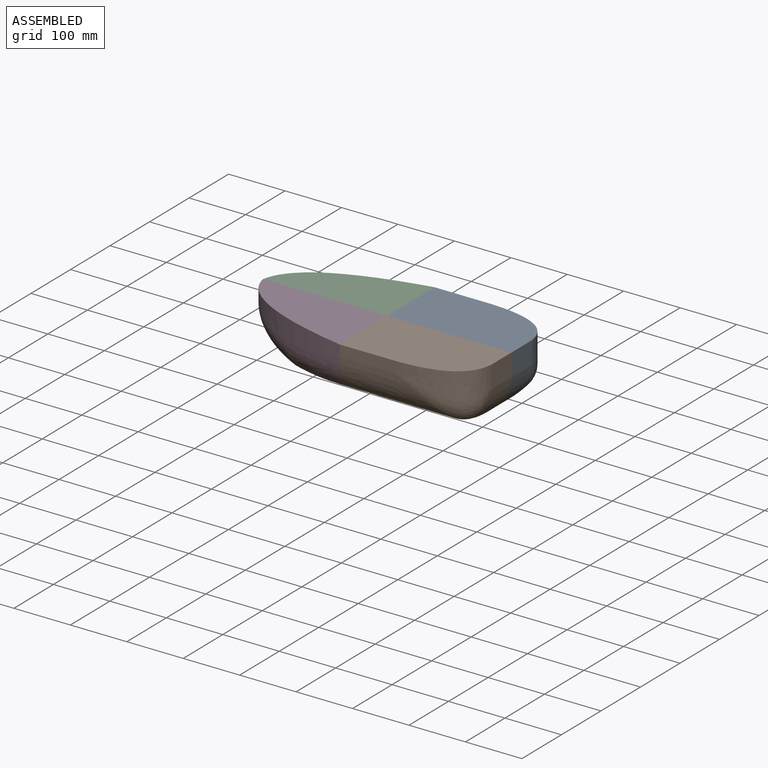
[diagram: assembled view]
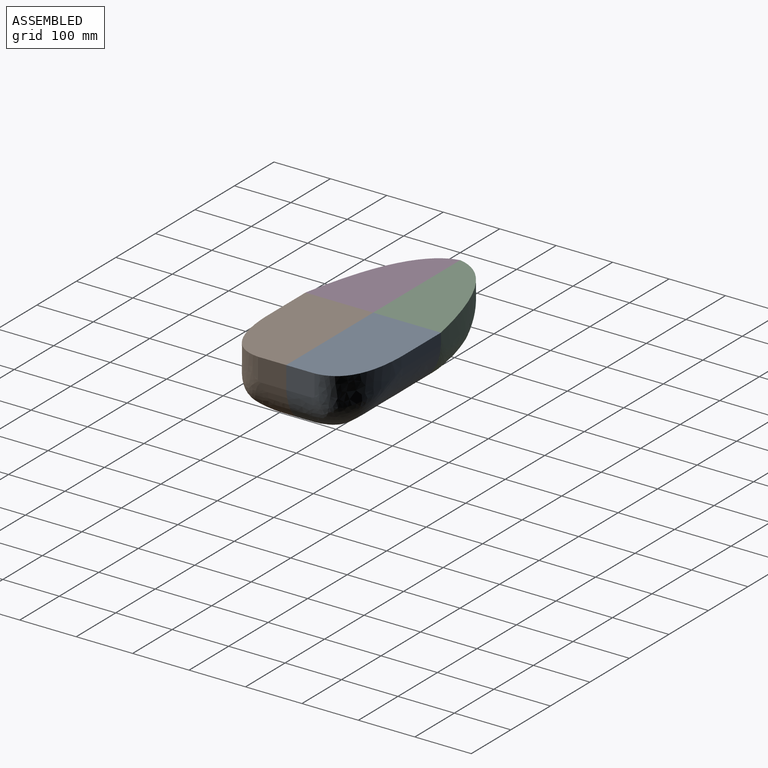
[diagram: assembled view, second angle]
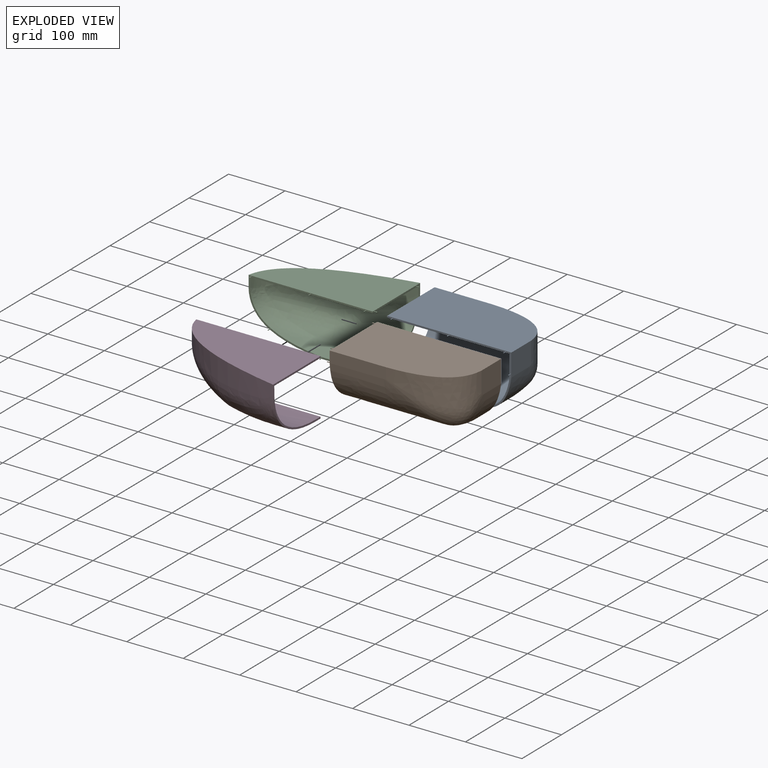
[diagram: exploded view]
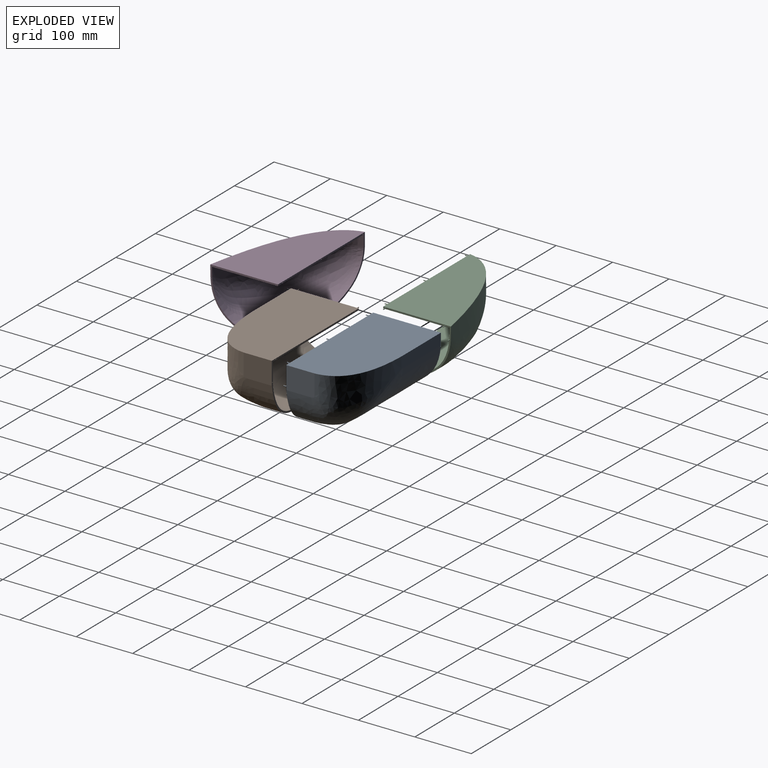
[diagram: exploded view, second angle]
ASSEMBLY  parts=4 mates=3
PART A: 48 faces, bbox 223.2x161.3x102.9 mm
  f0: plane 220x100mm, normal (0,-1,0), area 1521.5mm2, adj f1,f2,f3,f6,f7,f13,f14,f15
  f1: plane 120x100mm, normal (-1,0,0), area 886.4mm2, adj f0,f4,f5,f6,f7,f16,f17,f18
  f2: plane 52.85x42.85mm, normal (1,0,0), area 1995.8mm2, adj f0,f3,f7,f8,f9
  f3: extruded ~59.86x58.97mm, area 3254.7mm2, adj f0,f2,f9,f12,f13
  f4: extruded ~176.23x110mm, area 24032mm2, adj f1,f5,f6,f10,f12
  f5: plane 101.18x21.18mm, normal (0,1,0), area 1999mm2, adj f1,f4,f7,f8,f10
  f6: plane 168.8x10mm, normal (0,0,-1), area 1688mm2, adj f0,f1,f4,f13
  f7: plane 220x120mm, normal (0,0,1), area 24763.3mm2, adj f0,f1,f2,f5,f8
  f8: extruded ~120x70mm, area 6063.8mm2, adj f2,f5,f7,f9,f10
  f9: bspline ~40.98x34.06mm, area 536.6mm2, adj f2,f3,f8,f11
  f10: bspline ~113.68x71.42mm, area 2961mm2, adj f4,f5,f8,f11
  f11: sphere r=40mm, area 847.7mm2, adj f9,f10,f12
  f12: bspline ~118.12x45.51mm, area 1949.2mm2, adj f3,f4,f11,f13
  f13: cylinder r=40mm len=10mm, axis (0,1,0), area 33.2mm2, adj f0,f3,f6,f12
  f14: plane 52.64x39.55mm, normal (-1,0,0), area 1831.8mm2, adj f0,f15,f19,f20,f21
  f15: extruded ~58.97x57.08mm, area 3106.7mm2, adj f0,f14,f21,f24,f25
  f16: extruded ~176.23x107mm, area 23325.2mm2, adj f1,f17,f18,f22,f24
  f17: plane 101.08x18.03mm, normal (0,-1,0), area 1689mm2, adj f1,f16,f19,f20,f22
  f18: plane 168.8x10mm, normal (0,0,1), area 1688mm2, adj f0,f1,f16,f25
  f19: plane 217x117mm, normal (0,0,-1), area 23860mm2, adj f0,f1,f14,f17,f20
  f20: extruded ~117.04x67.11mm, area 5418.1mm2, adj f14,f17,f19,f21,f22
  f21: bspline ~38.89x32.77mm, area 482.5mm2, adj f14,f15,f20,f23
  f22: bspline ~111.12x68.65mm, area 2668.9mm2, adj f16,f17,f20,f23
  f23: sphere r=37mm, area 725.3mm2, adj f21,f22,f24
  f24: bspline ~116.73x42.69mm, area 1770.2mm2, adj f15,f16,f23,f25
  f25: cylinder r=37mm len=10mm, axis (0,1,0), area 30.7mm2, adj f0,f15,f18,f24
  f26: cylinder r=0.75mm len=6mm, axis (-1,0,0), area 28.3mm2, adj f1,f27
  f27: plane 1.5x1.5mm, normal (-1,0,0), area 1.8mm2, adj f26
  f28: cylinder r=0.75mm len=6mm, axis (-1,0,0), area 28.3mm2, adj f1,f29
  f29: plane 1.5x1.5mm, normal (-1,0,0), area 1.8mm2, adj f28
  f30: cylinder r=0.75mm len=6mm, axis (-1,0,0), area 28.3mm2, adj f1,f31
  f31: plane 1.5x1.5mm, normal (-1,0,0), area 1.8mm2, adj f30
  f32: cylinder r=0.75mm len=6mm, axis (-1,0,0), area 28.3mm2, adj f1,f33
  f33: plane 1.5x1.5mm, normal (-1,0,0), area 1.8mm2, adj f32
  f34: cylinder r=0.68mm len=5.5mm, axis (0,1,0), area 23.3mm2, adj f0,f35
  f35: plane 1.35x1.35mm, normal (0,-1,0), area 1.4mm2, adj f34
  f36: cylinder r=0.68mm len=5.5mm, axis (0,1,0), area 23.3mm2, adj f0,f37
  f37: plane 1.35x1.35mm, normal (0,-1,0), area 1.4mm2, adj f36
  f38: cylinder r=0.68mm len=5.5mm, axis (0,1,0), area 23.3mm2, adj f0,f39
  f39: plane 1.35x1.35mm, normal (0,-1,0), area 1.4mm2, adj f38
  f40: cylinder r=0.68mm len=5.5mm, axis (0,1,0), area 23.3mm2, adj f0,f41
  f41: plane 1.35x1.35mm, normal (0,-1,0), area 1.4mm2, adj f40
  f42: cylinder r=0.68mm len=5.5mm, axis (0,1,0), area 23.3mm2, adj f0,f43
  f43: plane 1.35x1.35mm, normal (0,-1,0), area 1.4mm2, adj f42
  f44: cylinder r=0.68mm len=5.5mm, axis (0,1,0), area 23.3mm2, adj f0,f45
  f45: plane 1.35x1.35mm, normal (0,-1,0), area 1.4mm2, adj f44
  f46: cylinder r=0.68mm len=5.5mm, axis (0,1,0), area 23.3mm2, adj f0,f47
  f47: plane 1.35x1.35mm, normal (0,-1,0), area 1.4mm2, adj f46
PART B: 48 faces, bbox 161.3x228.7x102.9 mm
  f0: plane 220x100mm, normal (1,0,0), area 1519.2mm2, adj f1,f2,f5,f6,f7,f13,f14,f15
  f1: extruded ~59.86x58.97mm, area 3254.7mm2, adj f0,f2,f10,f12,f13
  f2: plane 52.85x42.85mm, normal (0,-1,0), area 1995.8mm2, adj f0,f1,f6,f8,f10
  f3: extruded ~176.23x110mm, area 23995.4mm2, adj f4,f5,f7,f9,f12
  f4: plane 101.18x21.18mm, normal (-1,0,0), area 1999mm2, adj f3,f5,f6,f8,f9
  f5: plane 120x100mm, normal (0,1,0), area 888mm2, adj f0,f3,f4,f6,f7,f16,f17,f18
  f6: plane 220x120mm, normal (0,0,1), area 24763.3mm2, adj f0,f2,f4,f5,f8
  f7: plane 168.8x10mm, normal (0,0,-1), area 1688mm2, adj f0,f3,f5,f13
  f8: extruded ~120x70mm, area 6063.8mm2, adj f2,f4,f6,f9,f10
  f9: bspline ~113.68x71.42mm, area 2961.2mm2, adj f3,f4,f8,f11
  f10: bspline ~41x34.07mm, area 536.6mm2, adj f1,f2,f8,f11
  f11: sphere r=40mm, area 1086.8mm2, adj f9,f10,f12
  f12: bspline ~118.12x45.51mm, area 1949.2mm2, adj f1,f3,f11,f13
  f13: cylinder r=40mm len=10mm, axis (-1,0,0), area 33.2mm2, adj f0,f1,f7,f12
  f14: extruded ~58.97x57.08mm, area 3106.7mm2, adj f0,f15,f22,f24,f25
  f15: plane 52.64x39.55mm, normal (0,1,0), area 1831.8mm2, adj f0,f14,f18,f20,f22
  f16: extruded ~176.23x107mm, area 23289.3mm2, adj f5,f17,f19,f21,f24
  f17: plane 101.08x18.03mm, normal (1,0,0), area 1689mm2, adj f5,f16,f18,f20,f21
  f18: plane 217x117mm, normal (0,0,-1), area 23859.6mm2, adj f0,f5,f15,f17,f20
  f19: plane 168.8x10mm, normal (0,0,1), area 1688mm2, adj f0,f5,f16,f25
  f20: extruded ~117.04x67.11mm, area 5418.1mm2, adj f15,f17,f18,f21,f22
  f21: bspline ~111.12x68.65mm, area 2669mm2, adj f16,f17,f20,f23
  f22: bspline ~38.89x32.77mm, area 482.5mm2, adj f14,f15,f20,f23
  f23: sphere r=37mm, area 929.9mm2, adj f21,f22,f24
  f24: bspline ~116.73x42.69mm, area 1770.2mm2, adj f14,f16,f23,f25
  f25: cylinder r=37mm len=10mm, axis (-1,0,0), area 30.7mm2, adj f0,f14,f19,f24
  f26: cylinder r=0.68mm len=5.5mm, axis (0,-1,0), area 23.3mm2, adj f5,f27
  f27: plane 1.35x1.35mm, normal (0,1,0), area 1.4mm2, adj f26
  f28: cylinder r=0.68mm len=5.5mm, axis (0,-1,0), area 23.3mm2, adj f5,f29
  f29: plane 1.35x1.35mm, normal (0,1,0), area 1.4mm2, adj f28
  f30: cylinder r=0.68mm len=5.5mm, axis (0,-1,0), area 23.3mm2, adj f5,f31
  f31: plane 1.35x1.35mm, normal (0,1,0), area 1.4mm2, adj f30
  f32: cylinder r=0.68mm len=5.5mm, axis (0,-1,0), area 23.3mm2, adj f5,f33
  f33: plane 1.35x1.35mm, normal (0,1,0), area 1.4mm2, adj f32
  f34: cylinder r=0.75mm len=6mm, axis (1,0,0), area 28.3mm2, adj f0,f35
  f35: plane 1.5x1.5mm, normal (1,0,0), area 1.8mm2, adj f34
  f36: cylinder r=0.75mm len=6mm, axis (1,0,0), area 28.3mm2, adj f0,f37
  f37: plane 1.5x1.5mm, normal (1,0,0), area 1.8mm2, adj f36
  f38: cylinder r=0.75mm len=6mm, axis (1,0,0), area 28.3mm2, adj f0,f39
  f39: plane 1.5x1.5mm, normal (1,0,0), area 1.8mm2, adj f38
  f40: cylinder r=0.75mm len=6mm, axis (1,0,0), area 28.3mm2, adj f0,f41
  f41: plane 1.5x1.5mm, normal (1,0,0), area 1.8mm2, adj f40
  f42: cylinder r=0.75mm len=6mm, axis (1,0,0), area 28.3mm2, adj f0,f43
  f43: plane 1.5x1.5mm, normal (1,0,0), area 1.8mm2, adj f42
  f44: cylinder r=0.75mm len=6mm, axis (1,0,0), area 28.3mm2, adj f0,f45
  f45: plane 1.5x1.5mm, normal (1,0,0), area 1.8mm2, adj f44
  f46: cylinder r=0.75mm len=6mm, axis (1,0,0), area 28.3mm2, adj f0,f47
  f47: plane 1.5x1.5mm, normal (1,0,0), area 1.8mm2, adj f46
PART C: 44 faces, bbox 160.7x245.3x113.1 mm
  f0: plane 220x100mm, normal (-1,0,0), area 1472.3mm2, adj f2,f4,f5,f6,f7,f8,f9,f14
  f1: bspline ~62.52x14.58mm, area 60.8mm2, adj f2,f3,f7,f10
  f2: extruded ~90.59x32.43mm, area 1652.4mm2, adj f0,f1,f7,f9
  f3: extruded ~106.67x101.79mm, area 6134.4mm2, adj f1,f4,f6,f10,f12
  f4: plane 132.93x112.93mm, normal (0,-1,0), area 888.4mm2, adj f0,f3,f5,f6,f8,f12,f15,f16
  f5: plane 220x120mm, normal (0,0,1), area 18506.7mm2, adj f0,f4,f8
  f6: plane 89.12x10mm, normal (0,0,-1), area 891.2mm2, adj f0,f3,f4,f7
  f7: cylinder r=20mm len=10mm, axis (1,0,0), area 17.7mm2, adj f0,f1,f2,f6
  f8: extruded ~220x120mm, area 8038.4mm2, adj f0,f4,f5,f9,f12
  f9: bspline ~121.73x100.24mm, area 9956mm2, adj f0,f2,f8,f10,f11
  f10: bspline ~7.78x5.93mm, area 11.6mm2, adj f1,f3,f9,f11
  f11: bspline ~60.18x57.11mm, area 100.5mm2, adj f9,f10,f12
  f12: bspline ~146.57x99.21mm, area 8668.7mm2, adj f3,f4,f8,f11
  f13: bspline ~62.18x14.23mm, area 51.4mm2, adj f14,f15,f18,f21
  f14: extruded ~89.48x32.43mm, area 1635.9mm2, adj f0,f13,f18,f20
  f15: extruded ~103.78x101.79mm, area 6006.9mm2, adj f4,f13,f17,f21,f23
  f16: plane 216.95x116.94mm, normal (0,0,-1), area 17724.7mm2, adj f0,f4,f19,f23
  f17: plane 89.12x10mm, normal (0,0,1), area 891.2mm2, adj f0,f4,f15,f18
  f18: cylinder r=17mm len=10mm, axis (1,0,0), area 15.1mm2, adj f0,f13,f14,f17
  f19: extruded ~216.69x116.89mm, area 7155.9mm2, adj f0,f16,f20,f23
  f20: bspline ~119.04x97.37mm, area 9268.5mm2, adj f0,f14,f19,f21,f22
  f21: bspline ~7.31x5.48mm, area 9.5mm2, adj f13,f15,f20,f22
  f22: bspline ~56.73x48.23mm, area 81.1mm2, adj f20,f21,f23
  f23: bspline ~144.67x94.04mm, area 8154.3mm2, adj f4,f15,f16,f19,f22
  f24: cylinder r=0.68mm len=5.5mm, axis (1,0,0), area 23.3mm2, adj f0,f25
  f25: plane 1.35x1.35mm, normal (-1,0,0), area 1.4mm2, adj f24
  f26: cylinder r=0.68mm len=5.5mm, axis (1,0,0), area 23.3mm2, adj f0,f27
  f27: plane 1.35x1.35mm, normal (-1,0,0), area 1.4mm2, adj f26
  f28: cylinder r=0.68mm len=5.5mm, axis (1,0,0), area 23.3mm2, adj f0,f29
  f29: plane 1.35x1.35mm, normal (-1,0,0), area 1.4mm2, adj f28
  f30: cylinder r=0.68mm len=5.5mm, axis (1,0,0), area 23.3mm2, adj f0,f31
  f31: plane 1.35x1.35mm, normal (-1,0,0), area 1.4mm2, adj f30
  f32: cylinder r=0.68mm len=5.5mm, axis (1,0,0), area 23.3mm2, adj f0,f33
  f33: plane 1.35x1.35mm, normal (-1,0,0), area 1.4mm2, adj f32
  f34: cylinder r=0.68mm len=5.5mm, axis (1,0,0), area 23.3mm2, adj f0,f35
  f35: plane 1.35x1.35mm, normal (-1,0,0), area 1.4mm2, adj f34
  f36: cylinder r=0.68mm len=5.5mm, axis (0,1,0), area 23.3mm2, adj f4,f37
  f37: plane 1.35x1.35mm, normal (0,-1,0), area 1.4mm2, adj f36
  f38: cylinder r=0.68mm len=5.5mm, axis (0,1,0), area 23.3mm2, adj f4,f39
  f39: plane 1.35x1.35mm, normal (0,-1,0), area 1.4mm2, adj f38
  f40: cylinder r=0.68mm len=5.5mm, axis (0,1,0), area 23.3mm2, adj f4,f41
  f41: plane 1.35x1.35mm, normal (0,-1,0), area 1.4mm2, adj f40
  f42: cylinder r=0.68mm len=5.5mm, axis (0,1,0), area 23.3mm2, adj f4,f43
  f43: plane 1.35x1.35mm, normal (0,-1,0), area 1.4mm2, adj f42
PART D: 44 faces, bbox 232.2x147.7x100 mm
  f0: bspline ~62.52x14.58mm, area 60.8mm2, adj f1,f2,f7,f9
  f1: extruded ~90.59x32.43mm, area 1652.4mm2, adj f0,f4,f7,f10
  f2: extruded ~106.67x101.79mm, area 6134.5mm2, adj f0,f3,f5,f9,f12
  f3: plane 89.12x10mm, normal (0,0,-1), area 891.2mm2, adj f2,f4,f5,f7
  f4: plane 220x100mm, normal (0,1,0), area 1470.3mm2, adj f1,f3,f5,f6,f7,f8,f10,f14
  f5: plane 120x100mm, normal (1,0,0), area 887.2mm2, adj f2,f3,f4,f6,f8,f12,f15,f16
  f6: plane 220x120mm, normal (0,0,1), area 18506.7mm2, adj f4,f5,f8
  f7: cylinder r=20mm len=10mm, axis (0,-1,0), area 17.7mm2, adj f0,f1,f3,f4
  f8: extruded ~220x120mm, area 8038.5mm2, adj f4,f5,f6,f10,f12
  f9: bspline ~7.78x5.93mm, area 11.6mm2, adj f0,f2,f10,f11
  f10: bspline ~121.73x100.24mm, area 9956.4mm2, adj f1,f4,f8,f9,f11
  f11: bspline ~59.71x50.82mm, area 100.5mm2, adj f9,f10,f12
  f12: bspline ~142.89x98.55mm, area 8667mm2, adj f2,f5,f8,f11,f36,f37
  f13: bspline ~62.18x14.23mm, area 51.4mm2, adj f14,f15,f18,f20
  f14: extruded ~89.48x32.43mm, area 1635.9mm2, adj f4,f13,f18,f21
  f15: extruded ~103.78x101.79mm, area 6007mm2, adj f5,f13,f16,f20,f23
  f16: plane 89.12x10mm, normal (0,0,1), area 891.2mm2, adj f4,f5,f15,f18
  f17: plane 216.95x116.94mm, normal (0,0,-1), area 17724.5mm2, adj f4,f5,f19,f23
  f18: cylinder r=17mm len=10mm, axis (0,-1,0), area 15.1mm2, adj f4,f13,f14,f16
  f19: extruded ~216.69x116.89mm, area 7155.5mm2, adj f4,f17,f21,f23
  f20: bspline ~7.31x5.48mm, area 9.5mm2, adj f13,f15,f21,f22
  f21: bspline ~119.04x97.37mm, area 9269mm2, adj f4,f14,f19,f20,f22
  f22: bspline ~57.17x54.2mm, area 81.1mm2, adj f20,f21,f23
  f23: bspline ~141.43x94.68mm, area 8151.2mm2, adj f5,f15,f17,f19,f22
  f24: cylinder r=0.75mm len=6mm, axis (0,1,0), area 28.3mm2, adj f4,f25
  f25: plane 1.5x1.5mm, normal (0,1,0), area 1.8mm2, adj f24
  f26: cylinder r=0.75mm len=6mm, axis (0,1,0), area 28.3mm2, adj f4,f27
  f27: plane 1.5x1.5mm, normal (0,1,0), area 1.8mm2, adj f26
  f28: cylinder r=0.75mm len=6mm, axis (0,1,0), area 28.3mm2, adj f4,f29
  f29: plane 1.5x1.5mm, normal (0,1,0), area 1.8mm2, adj f28
  f30: cylinder r=0.75mm len=6mm, axis (0,1,0), area 28.3mm2, adj f4,f31
  f31: plane 1.5x1.5mm, normal (0,1,0), area 1.8mm2, adj f30
  f32: cylinder r=0.75mm len=6mm, axis (0,1,0), area 28.3mm2, adj f4,f33
  f33: plane 1.5x1.5mm, normal (0,1,0), area 1.8mm2, adj f32
  f34: cylinder r=0.75mm len=6mm, axis (0,1,0), area 28.3mm2, adj f4,f35
  f35: plane 1.5x1.5mm, normal (0,1,0), area 1.8mm2, adj f34
  f36: cylinder r=0.75mm len=6mm, axis (1,0,0), area 28.3mm2, adj f5,f12,f37
  f37: plane 1.5x1.46mm, normal (1,0,0), area 1.8mm2, adj f12,f36
  f38: cylinder r=0.75mm len=6mm, axis (1,0,0), area 28.3mm2, adj f5,f39
  f39: plane 1.5x1.5mm, normal (1,0,0), area 1.8mm2, adj f38
  f40: cylinder r=0.75mm len=6mm, axis (1,0,0), area 28.3mm2, adj f5,f41
  f41: plane 1.5x1.5mm, normal (1,0,0), area 1.8mm2, adj f40
  f42: cylinder r=0.75mm len=6mm, axis (1,0,0), area 28.3mm2, adj f5,f43
  f43: plane 1.5x1.5mm, normal (1,0,0), area 1.8mm2, adj f42
PLACE A t=(250.05,156.77,-47.98)mm
PLACE B rot(axis=(0,0,1),90deg) t=(276.79,102.88,-47.98)mm
PLACE C rot(axis=(0,0,1),90deg) t=(52.02,191.01,-47.98)mm
PLACE D t=(64.4,77.42,-47.98)mm
MATE fastened C.f40 <-> A.f32  axis (1,0,0) through (163.73,114.67,50.52)mm
MATE fastened C.f26 <-> D.f32  axis (0,-1,0) through (151.73,110.67,50.52)mm
MATE fastened B.f34 <-> A.f38  axis (0,1,0) through (173.73,110.67,50.52)mm
